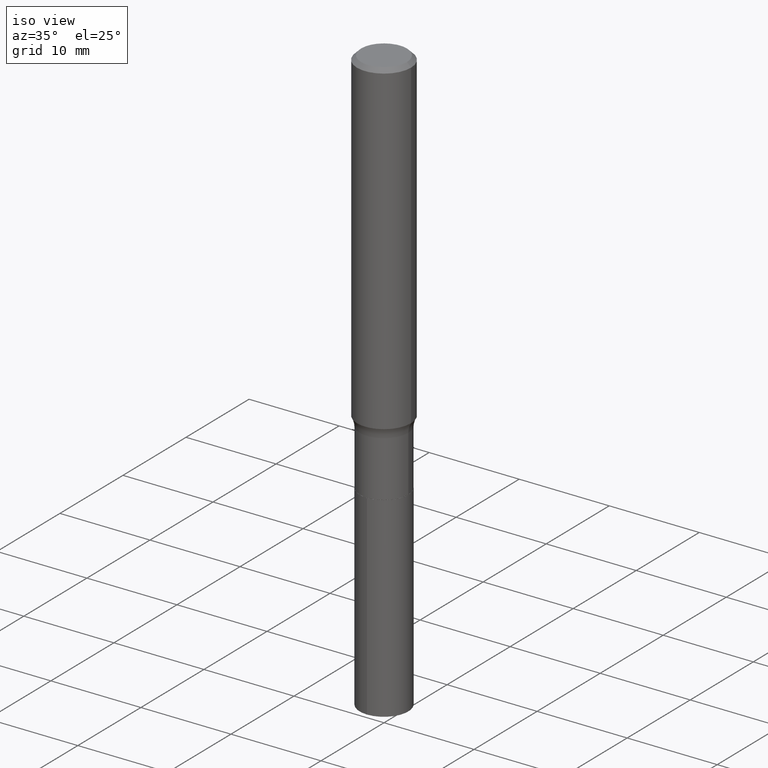
[diagram: clean part render]
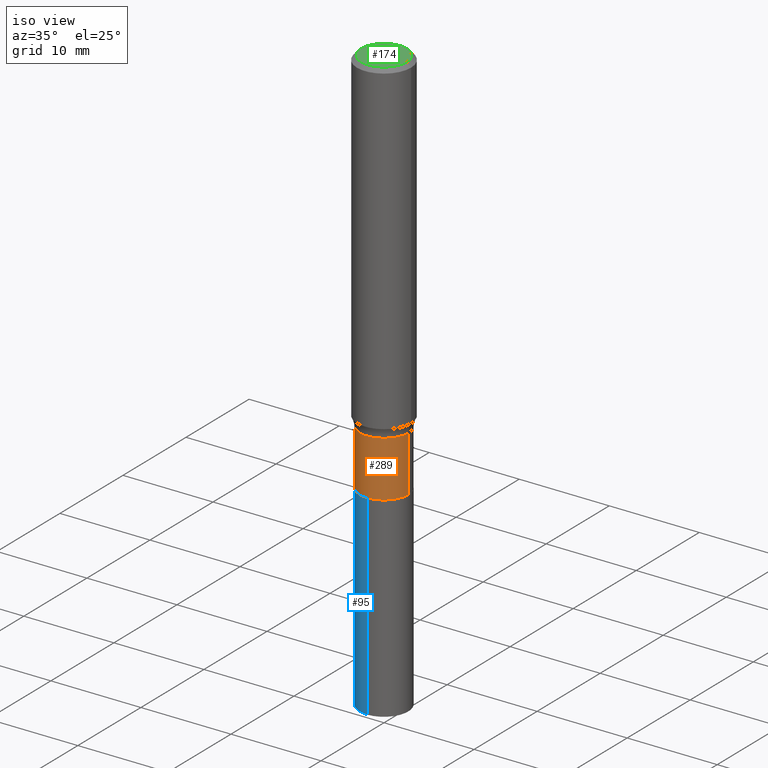
[diagram: same view with three faces highlighted in distinct colors, each labeled with its STEP entity id]
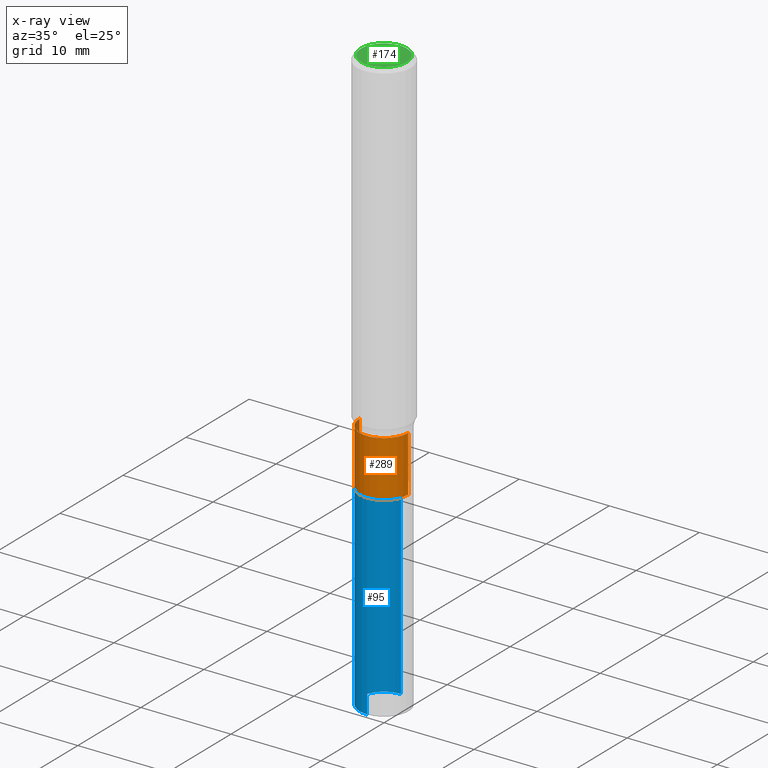
[diagram: x-ray of the same camera — body ghosted, the three highlighted faces saturated]
A machine part, iso view with three faces highlighted in distinct colors.
The next image is the same camera in x-ray (body ghosted, the three faces saturated) — at least one of them is partly hidden behind the body in this view.
Their STEP definitions:

[orange] entity #289 — the highlighted cylindrical surface (edge-blend (fillet) strip) has radius 2.7 mm, axis along (-0, 0, 1).
#12 = ORIENTED_EDGE ( 'NONE', *, *, #418, .T. ) ;
#27 = EDGE_CURVE ( 'NONE', #479, #310, #397, .T. ) ;
#70 = AXIS2_PLACEMENT_3D ( 'NONE', #272, #312, #462 ) ;
#80 = DIRECTION ( 'NONE',  ( -2.445468806185136877E-29, 3.491481338843145188E-15, 1.000000000000000000 ) ) ;
#87 = CIRCLE ( 'NONE', #135, 0.1062999999999999640 ) ;
#118 = LINE ( 'NONE', #202, #351 ) ;
#125 = VERTEX_POINT ( 'NONE', #293 ) ;
#131 = CARTESIAN_POINT ( 'NONE',  ( 3.580410879135657668E-29, -5.111877828200249487E-15, -1.464099999999999735 ) ) ;
#135 = AXIS2_PLACEMENT_3D ( 'NONE', #131, #281, #290 ) ;
#136 = CARTESIAN_POINT ( 'NONE',  ( -0.1063000000000000056, -4.782531623426126781E-15, -1.708099999999999952 ) ) ;
#154 = FACE_OUTER_BOUND ( 'NONE', #319, .T. ) ;
#162 = CYLINDRICAL_SURFACE ( 'NONE', #477, 0.1062999999999999917 ) ;
#167 = VERTEX_POINT ( 'NONE', #374 ) ;
#175 = CARTESIAN_POINT ( 'NONE',  ( -0.1062999999999999917, 7.553069281129864387E-16, -5.228828000940964357E-30 ) ) ;
#202 = CARTESIAN_POINT ( 'NONE',  ( 0.1062999999999999917, -7.422889326380501387E-16, 5.183375912671078649E-30 ) ) ;
#230 = DIRECTION ( 'NONE',  ( -2.445468806185136597E-29, 3.491481338843145583E-15, 1.000000000000000000 ) ) ;
#272 = CARTESIAN_POINT ( 'NONE',  ( 4.177105267844832123E-29, -5.963799274877977150E-15, -1.708099999999999952 ) ) ;
#281 = DIRECTION ( 'NONE',  ( -2.445468806185136597E-29, 3.491481338843145583E-15, 1.000000000000000000 ) ) ;
#289 = ADVANCED_FACE ( 'NONE', ( #154 ), #162, .T. ) ;
#290 = DIRECTION ( 'NONE',  ( 1.000000000000000000, -6.982962677686271444E-15, 0.000000000000000000 ) ) ;
#293 = CARTESIAN_POINT ( 'NONE',  ( 0.1063000000000000056, -6.706088207516027289E-15, -1.708099999999999952 ) ) ;
#305 = CIRCLE ( 'NONE', #70, 0.1063000000000000056 ) ;
#306 = DIRECTION ( 'NONE',  ( 1.000000000000000000, -6.982962677686267499E-15, 4.876176775795935232E-29 ) ) ;
#310 = VERTEX_POINT ( 'NONE', #465 ) ;
#312 = DIRECTION ( 'NONE',  ( -2.445468806185136597E-29, 3.491481338843145583E-15, 1.000000000000000000 ) ) ;
#319 = EDGE_LOOP ( 'NONE', ( #466, #12, #356, #460 ) ) ;
#332 = EDGE_CURVE ( 'NONE', #125, #167, #118, .T. ) ;
#351 = VECTOR ( 'NONE', #80, 39.37007874015748143 ) ;
#356 = ORIENTED_EDGE ( 'NONE', *, *, #332, .T. ) ;
#374 = CARTESIAN_POINT ( 'NONE',  ( 0.1062999999999999640, -5.854166760838299626E-15, -1.464099999999999735 ) ) ;
#385 = CARTESIAN_POINT ( 'NONE',  ( 0.000000000000000000, 0.000000000000000000, 0.000000000000000000 ) ) ;
#397 = LINE ( 'NONE', #175, #438 ) ;
#418 = EDGE_CURVE ( 'NONE', #479, #125, #305, .T. ) ;
#438 = VECTOR ( 'NONE', #470, 39.37007874015748143 ) ;
#460 = ORIENTED_EDGE ( 'NONE', *, *, #488, .F. ) ;
#462 = DIRECTION ( 'NONE',  ( 1.000000000000000000, -6.982962677686269077E-15, 0.000000000000000000 ) ) ;
#465 = CARTESIAN_POINT ( 'NONE',  ( -0.1062999999999999640, -4.782531623426126781E-15, -1.464099999999999735 ) ) ;
#466 = ORIENTED_EDGE ( 'NONE', *, *, #27, .F. ) ;
#470 = DIRECTION ( 'NONE',  ( -2.445468806185136877E-29, 3.491481338843145188E-15, 1.000000000000000000 ) ) ;
#477 = AXIS2_PLACEMENT_3D ( 'NONE', #385, #230, #306 ) ;
#479 = VERTEX_POINT ( 'NONE', #136 ) ;
#488 = EDGE_CURVE ( 'NONE', #310, #167, #87, .T. ) ;

[blue] entity #95 — the highlighted cylindrical surface (edge-blend (fillet) strip) has radius 2.7 mm, axis along (-0, 0, 1).
#34 = CARTESIAN_POINT ( 'NONE',  ( 7.553069281130493504E-16, 0.1062999999999910683, -2.564883738742165242 ) ) ;
#54 = DIRECTION ( 'NONE',  ( -6.982962677686265922E-15, -1.000000000000000000, 2.569941668545873170E-15 ) ) ;
#59 = CIRCLE ( 'NONE', #190, 0.1063000000000000056 ) ;
#66 = DIRECTION ( 'NONE',  ( -2.445655666621594660E-29, 3.491213744062702196E-15, 1.000000000000000000 ) ) ;
#75 = ORIENTED_EDGE ( 'NONE', *, *, #229, .F. ) ;
#95 = ADVANCED_FACE ( 'NONE', ( #321 ), #130, .T. ) ;
#100 = DIRECTION ( 'NONE',  ( -6.982962677686265922E-15, -1.000000000000000000, 2.569941668545873170E-15 ) ) ;
#103 = EDGE_CURVE ( 'NONE', #117, #137, #213, .T. ) ;
#104 = CARTESIAN_POINT ( 'NONE',  ( 6.272503180138623620E-29, -8.955014573061440103E-15, -2.564883738742164798 ) ) ;
#106 = CARTESIAN_POINT ( 'NONE',  ( -7.422889326379875229E-16, -0.1063000000000089845, -2.564883738742163910 ) ) ;
#117 = VERTEX_POINT ( 'NONE', #34 ) ;
#130 = CYLINDRICAL_SURFACE ( 'NONE', #303, 0.1063000000000000056 ) ;
#137 = VERTEX_POINT ( 'NONE', #226 ) ;
#152 = VERTEX_POINT ( 'NONE', #264 ) ;
#155 = VERTEX_POINT ( 'NONE', #106 ) ;
#164 = ORIENTED_EDGE ( 'NONE', *, *, #442, .T. ) ;
#190 = AXIS2_PLACEMENT_3D ( 'NONE', #104, #66, #256 ) ;
#196 = ORIENTED_EDGE ( 'NONE', *, *, #243, .T. ) ;
#213 = LINE ( 'NONE', #487, #390 ) ;
#226 = CARTESIAN_POINT ( 'NONE',  ( 7.553069281130492518E-16, 0.1062999999999940520, -1.708600000000000119 ) ) ;
#229 = EDGE_CURVE ( 'NONE', #137, #152, #276, .T. ) ;
#243 = EDGE_CURVE ( 'NONE', #117, #155, #59, .T. ) ;
#256 = DIRECTION ( 'NONE',  ( -6.982962677686265922E-15, -1.000000000000000000, 5.139883337091746339E-15 ) ) ;
#264 = CARTESIAN_POINT ( 'NONE',  ( -7.422889326380084277E-16, -0.1063000000000059592, -1.708599999999999675 ) ) ;
#276 = CIRCLE ( 'NONE', #407, 0.1063000000000000056 ) ;
#284 = CARTESIAN_POINT ( 'NONE',  ( 4.178328002247923804E-29, -5.965545015547398653E-15, -1.708599999999999897 ) ) ;
#303 = AXIS2_PLACEMENT_3D ( 'NONE', #284, #401, #54 ) ;
#321 = FACE_OUTER_BOUND ( 'NONE', #329, .T. ) ;
#323 = DIRECTION ( 'NONE',  ( -2.445655666621594941E-29, 3.491213744062702196E-15, 1.000000000000000000 ) ) ;
#326 = VECTOR ( 'NONE', #323, 39.37007874015748143 ) ;
#329 = EDGE_LOOP ( 'NONE', ( #423, #196, #164, #75 ) ) ;
#340 = CARTESIAN_POINT ( 'NONE',  ( 4.178328002247923804E-29, -5.965545015547398653E-15, -1.708599999999999897 ) ) ;
#390 = VECTOR ( 'NONE', #449, 39.37007874015748143 ) ;
#400 = LINE ( 'NONE', #443, #326 ) ;
#401 = DIRECTION ( 'NONE',  ( -2.445655666621594660E-29, 3.491213744062702196E-15, 1.000000000000000000 ) ) ;
#407 = AXIS2_PLACEMENT_3D ( 'NONE', #340, #489, #100 ) ;
#423 = ORIENTED_EDGE ( 'NONE', *, *, #103, .F. ) ;
#442 = EDGE_CURVE ( 'NONE', #155, #152, #400, .T. ) ;
#443 = CARTESIAN_POINT ( 'NONE',  ( -7.422889326380084277E-16, -0.1063000000000059592, -1.708599999999999675 ) ) ;
#449 = DIRECTION ( 'NONE',  ( -2.445655666621594941E-29, 3.491213744062702196E-15, 1.000000000000000000 ) ) ;
#487 = CARTESIAN_POINT ( 'NONE',  ( 7.553069281130281498E-16, 0.1062999999999940520, -1.708600000000000119 ) ) ;
#489 = DIRECTION ( 'NONE',  ( -2.445655666621594660E-29, 3.491213744062702196E-15, 1.000000000000000000 ) ) ;

[green] entity #174 — the highlighted planar face has unit normal (0, -0, -1).
#25 = DIRECTION ( 'NONE',  ( 1.000000000000000000, -6.982962677686266711E-15, 4.876140833081945105E-29 ) ) ;
#74 = DIRECTION ( 'NONE',  ( 1.000000000000000000, -6.982962677686266711E-15, 4.876140833081945105E-29 ) ) ;
#76 = AXIS2_PLACEMENT_3D ( 'NONE', #393, #456, #74 ) ;
#84 = EDGE_LOOP ( 'NONE', ( #420, #406 ) ) ;
#101 = AXIS2_PLACEMENT_3D ( 'NONE', #228, #481, #446 ) ;
#111 = CARTESIAN_POINT ( 'NONE',  ( 0.1003850000000000020, -7.803837484803598359E-16, -4.101342130339306751E-18 ) ) ;
#140 = EDGE_CURVE ( 'NONE', #324, #275, #452, .T. ) ;
#174 = ADVANCED_FACE ( 'NONE', ( #378 ), #223, .F. ) ;
#223 = PLANE ( 'NONE',  #101 ) ;
#228 = CARTESIAN_POINT ( 'NONE',  ( 5.014852121625167883E-47, -7.159879756154482429E-33, -2.050671065172242981E-18 ) ) ;
#232 = CIRCLE ( 'NONE', #76, 0.1003850000000000020 ) ;
#275 = VERTEX_POINT ( 'NONE', #355 ) ;
#280 = EDGE_CURVE ( 'NONE', #275, #324, #232, .T. ) ;
#298 = CARTESIAN_POINT ( 'NONE',  ( 1.002970424325033577E-46, -1.431975951230896486E-32, -4.101342130344485961E-18 ) ) ;
#324 = VERTEX_POINT ( 'NONE', #111 ) ;
#334 = AXIS2_PLACEMENT_3D ( 'NONE', #298, #410, #25 ) ;
#355 = CARTESIAN_POINT ( 'NONE',  ( -0.1003850000000000020, 7.319105043583386689E-16, -4.101342130349496461E-18 ) ) ;
#378 = FACE_OUTER_BOUND ( 'NONE', #84, .T. ) ;
#393 = CARTESIAN_POINT ( 'NONE',  ( 1.002970424325033577E-46, -1.431975951230896486E-32, -4.101342130344485961E-18 ) ) ;
#406 = ORIENTED_EDGE ( 'NONE', *, *, #140, .T. ) ;
#410 = DIRECTION ( 'NONE',  ( -2.445468806185136597E-29, 3.491481338843145583E-15, 1.000000000000000000 ) ) ;
#420 = ORIENTED_EDGE ( 'NONE', *, *, #280, .T. ) ;
#446 = DIRECTION ( 'NONE',  ( -1.000000000000000000, 6.982962677686265922E-15, -4.876176775795935793E-29 ) ) ;
#452 = CIRCLE ( 'NONE', #334, 0.1003850000000000020 ) ;
#456 = DIRECTION ( 'NONE',  ( -2.445468806185136597E-29, 3.491481338843145583E-15, 1.000000000000000000 ) ) ;
#481 = DIRECTION ( 'NONE',  ( 2.438088387897960049E-29, -3.491481338843145188E-15, -1.000000000000000000 ) ) ;